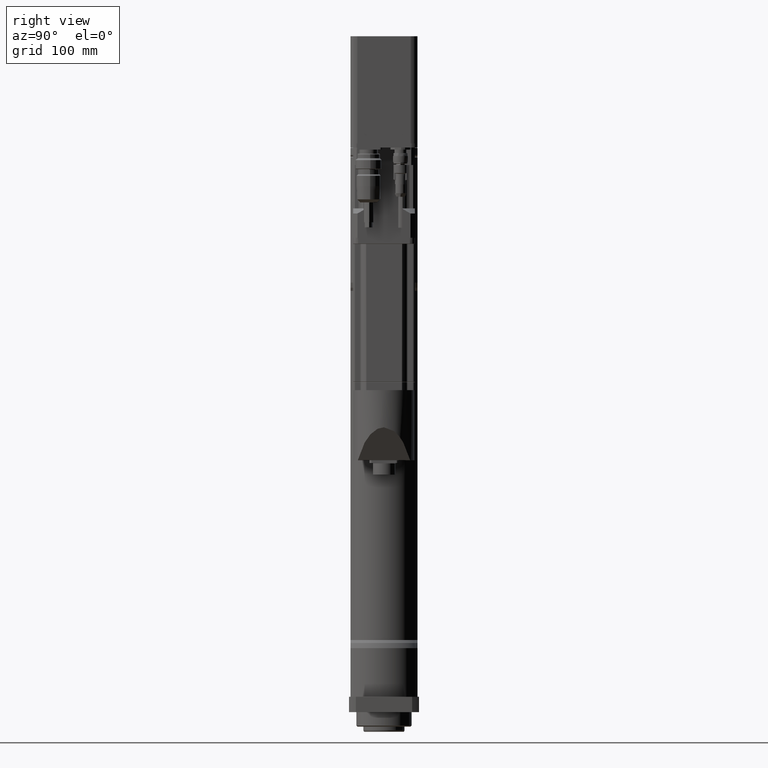
[diagram: clean part render]
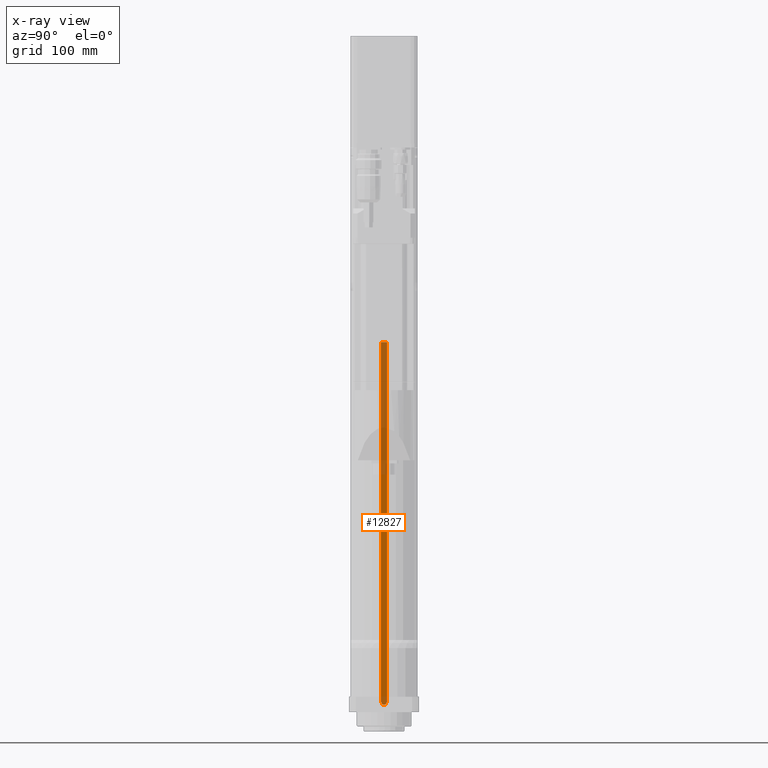
[diagram: x-ray — body ghosted, one internal face saturated and labeled with its STEP entity id]
A machine part, right view, then the same camera in x-ray: the body is ghosted and one INTERNAL B-rep face — a face not visible from any outside direction — is saturated and labeled: STEP entity #12827.
In plain terms, the highlighted planar face has unit normal (1, 0, 0).
Its self-contained STEP definition (entity closure, byte-faithful):
#1141=LINE('',#24607,#2077);
#1144=LINE('',#24613,#2080);
#1146=LINE('',#24618,#2082);
#2077=VECTOR('',#18081,249.);
#2080=VECTOR('',#18086,249.);
#2082=VECTOR('',#18094,6.);
#2644=PLANE('',#14317);
#3610=FACE_OUTER_BOUND('',#4575,.T.);
#4575=EDGE_LOOP('',(#11523,#11524,#11525,#11526));
#5165=CIRCLE('',#14316,3.);
#6314=VERTEX_POINT('',#24604);
#6315=VERTEX_POINT('',#24606);
#6316=VERTEX_POINT('',#24610);
#6317=VERTEX_POINT('',#24612);
#8049=EDGE_CURVE('',#6314,#6315,#1141,.T.);
#8052=EDGE_CURVE('',#6316,#6317,#1144,.T.);
#8054=EDGE_CURVE('',#6315,#6316,#5165,.T.);
#8055=EDGE_CURVE('',#6317,#6314,#1146,.T.);
#11523=ORIENTED_EDGE('',*,*,#8049,.F.);
#11524=ORIENTED_EDGE('',*,*,#8055,.F.);
#11525=ORIENTED_EDGE('',*,*,#8052,.F.);
#11526=ORIENTED_EDGE('',*,*,#8054,.F.);
#12827=ADVANCED_FACE('',(#3610),#2644,.F.);
#14316=AXIS2_PLACEMENT_3D('',#24616,#18090,#18091);
#14317=AXIS2_PLACEMENT_3D('',#24617,#18092,#18093);
#18081=DIRECTION('',(2.14018896313283E-16,0.,1.));
#18086=DIRECTION('',(-1.82807807267596E-16,0.,-1.));
#18090=DIRECTION('center_axis',(0.,-1.,0.));
#18091=DIRECTION('ref_axis',(1.,0.,3.55271367880055E-14));
#18092=DIRECTION('center_axis',(0.,-1.,0.));
#18093=DIRECTION('ref_axis',(0.,0.,-1.));
#18094=DIRECTION('',(1.,0.,0.));
#24604=CARTESIAN_POINT('',(2.99999999999998,17.2,0.));
#24606=CARTESIAN_POINT('',(3.00000000000005,17.2,349.));
#24607=CARTESIAN_POINT('',(3.,17.2,100.));
#24610=CARTESIAN_POINT('',(-2.99999999999996,17.2,349.));
#24612=CARTESIAN_POINT('',(-3.00000000000002,17.2,0.));
#24613=CARTESIAN_POINT('',(-2.99999999999996,17.2,349.));
#24616=CARTESIAN_POINT('Origin',(0.,17.2,349.));
#24617=CARTESIAN_POINT('Origin',(2.24121992928512E-14,17.2,224.78673345168));
#24618=CARTESIAN_POINT('',(1.07339714049549E-14,17.2,0.));